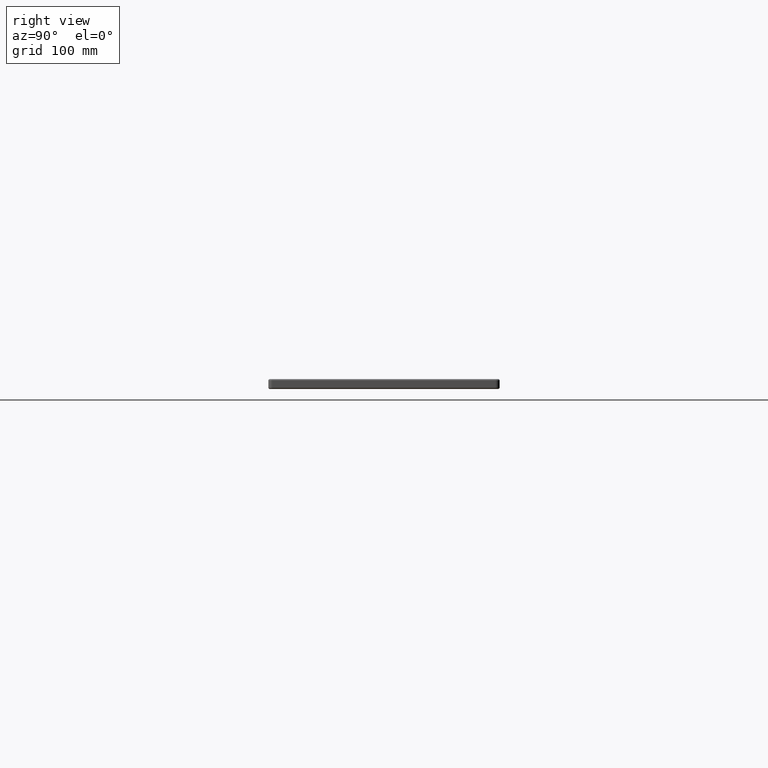
[diagram: clean part render]
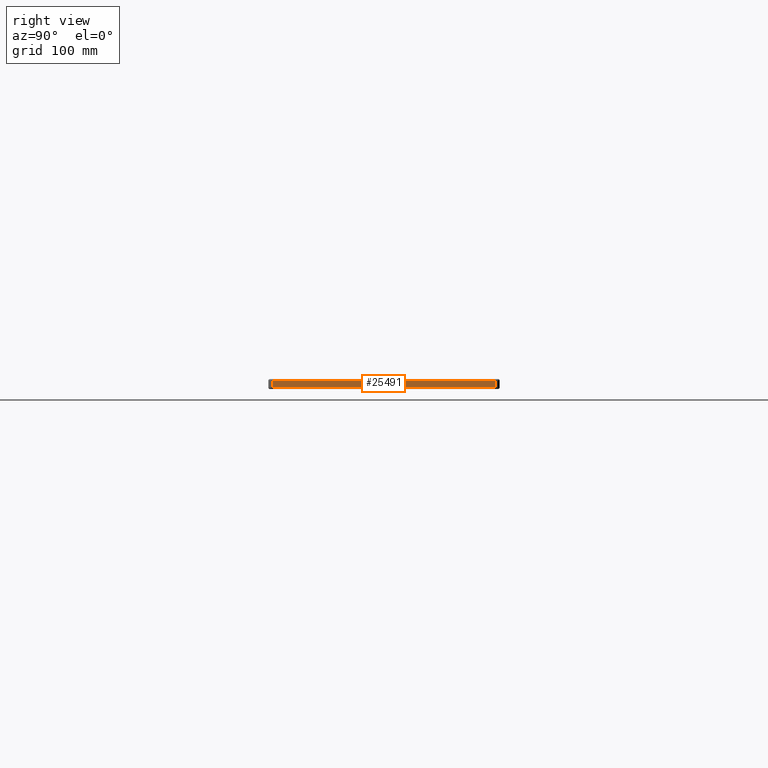
[diagram: same view with one face highlighted and labeled with its STEP entity id]
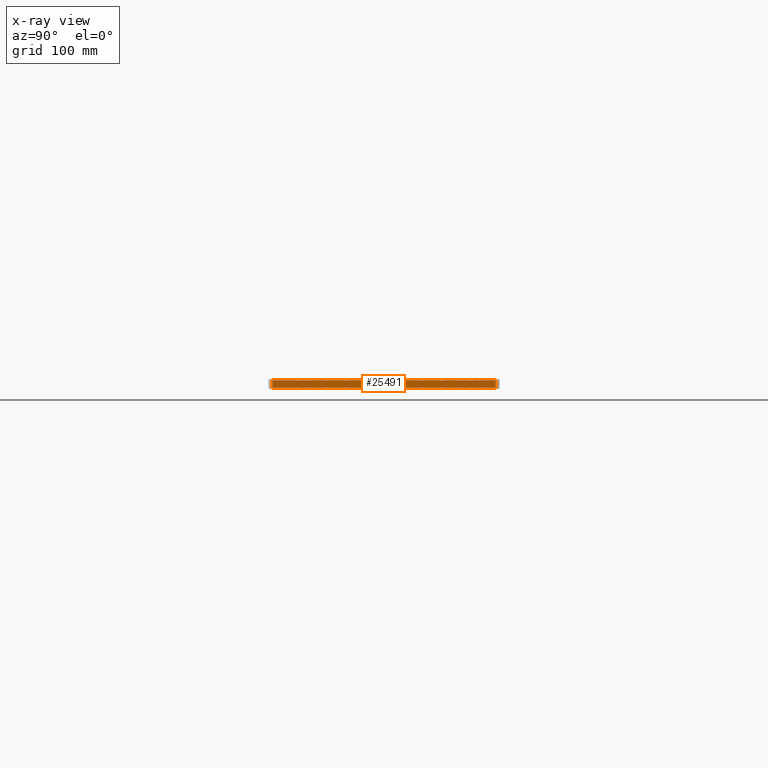
[diagram: x-ray of the same camera — body ghosted, the highlighted face saturated]
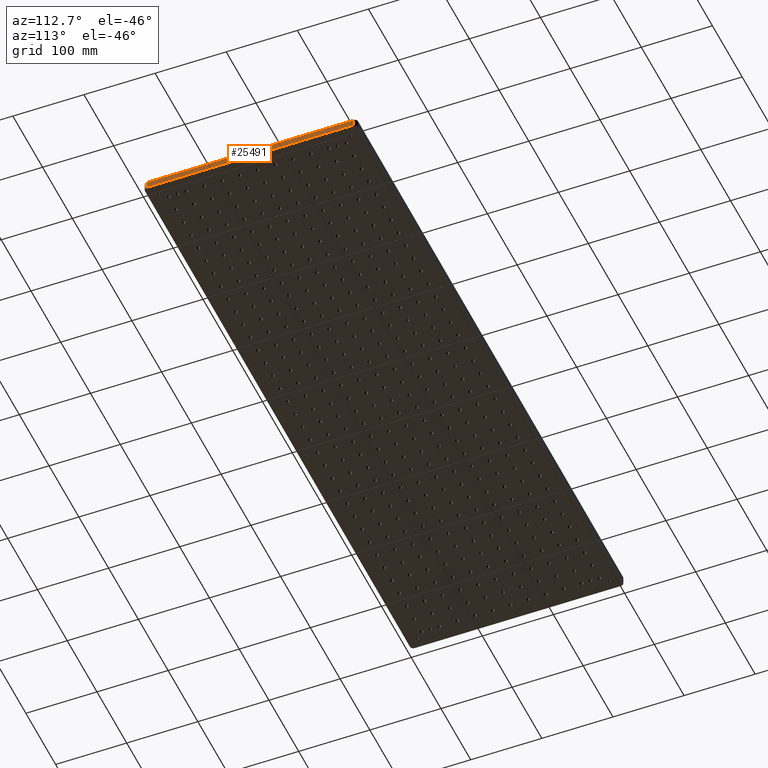
[diagram: same view with one face highlighted and labeled with its STEP entity id]
A machine part, right view. The second image highlights one B-rep face of the part: STEP entity #25491.
The next image is the same camera in x-ray: the body ghosted, the highlighted face saturated — about 0% of this face is hidden behind the body in this view.
A second angle (auxiliary view) of the same face is appended — the face is thin or edge-on in the first view.
In plain terms, the highlighted planar face has unit normal (1, 0, 0).
Its self-contained STEP definition (entity closure, byte-faithful):
#23 = CARTESIAN_POINT ( 'NONE',  ( 900.0000000000000000, 294.9999999999999400, -13.00000000000000000 ) ) ;
#414 = ORIENTED_EDGE ( 'NONE', *, *, #759, .T. ) ;
#759 = EDGE_CURVE ( 'NONE', #5732, #5030, #20124, .T. ) ;
#1292 = CARTESIAN_POINT ( 'NONE',  ( 900.0000000000000000, 4.999999999999999100, -11.00000000000000000 ) ) ;
#1508 = CARTESIAN_POINT ( 'NONE',  ( 900.0000000000000000, 5.000000000000004400, -2.000000000000000000 ) ) ;
#2276 = ORIENTED_EDGE ( 'NONE', *, *, #15576, .T. ) ;
#2966 = FACE_OUTER_BOUND ( 'NONE', #19678, .T. ) ;
#4014 = LINE ( 'NONE', #16732, #6563 ) ;
#4837 = EDGE_CURVE ( 'NONE', #8582, #5732, #25805, .T. ) ;
#5030 = VERTEX_POINT ( 'NONE', #10722 ) ;
#5732 = VERTEX_POINT ( 'NONE', #9843 ) ;
#6563 = VECTOR ( 'NONE', #23561, 1000.000000000000000 ) ;
#8582 = VERTEX_POINT ( 'NONE', #24538 ) ;
#8623 = VECTOR ( 'NONE', #23229, 1000.000000000000000 ) ;
#8973 = CARTESIAN_POINT ( 'NONE',  ( 900.0000000000000000, 0.0000000000000000000, -11.00000000000000000 ) ) ;
#9843 = CARTESIAN_POINT ( 'NONE',  ( 900.0000000000000000, 294.9999999999999400, -2.000000000000000000 ) ) ;
#9878 = DIRECTION ( 'NONE',  ( 0.0000000000000000000, 0.0000000000000000000, -1.000000000000000000 ) ) ;
#10722 = CARTESIAN_POINT ( 'NONE',  ( 900.0000000000000000, 4.999999999999999100, -2.000000000000000000 ) ) ;
#12893 = EDGE_CURVE ( 'NONE', #5030, #25169, #4014, .T. ) ;
#15576 = EDGE_CURVE ( 'NONE', #25169, #8582, #16284, .T. ) ;
#16138 = DIRECTION ( 'NONE',  ( 0.0000000000000000000, 0.0000000000000000000, 1.000000000000000000 ) ) ;
#16284 = LINE ( 'NONE', #8973, #8623 ) ;
#16732 = CARTESIAN_POINT ( 'NONE',  ( 900.0000000000000000, 4.999999999999999100, -13.00000000000000000 ) ) ;
#17620 = ORIENTED_EDGE ( 'NONE', *, *, #4837, .T. ) ;
#18481 = AXIS2_PLACEMENT_3D ( 'NONE', #19428, #23855, #9878 ) ;
#19428 = CARTESIAN_POINT ( 'NONE',  ( 900.0000000000000000, 0.0000000000000000000, -13.00000000000000000 ) ) ;
#19678 = EDGE_LOOP ( 'NONE', ( #22602, #2276, #17620, #414 ) ) ;
#20124 = LINE ( 'NONE', #1508, #24906 ) ;
#22602 = ORIENTED_EDGE ( 'NONE', *, *, #12893, .T. ) ;
#23229 = DIRECTION ( 'NONE',  ( -0.0000000000000000000, 1.000000000000000000, 0.0000000000000000000 ) ) ;
#23561 = DIRECTION ( 'NONE',  ( 0.0000000000000000000, -0.0000000000000000000, -1.000000000000000000 ) ) ;
#23855 = DIRECTION ( 'NONE',  ( 1.000000000000000000, 0.0000000000000000000, 0.0000000000000000000 ) ) ;
#24249 = PLANE ( 'NONE',  #18481 ) ;
#24538 = CARTESIAN_POINT ( 'NONE',  ( 900.0000000000000000, 294.9999999999999400, -11.00000000000000000 ) ) ;
#24906 = VECTOR ( 'NONE', #29195, 1000.000000000000000 ) ;
#25169 = VERTEX_POINT ( 'NONE', #1292 ) ;
#25491 = ADVANCED_FACE ( 'NONE', ( #2966 ), #24249, .T. ) ;
#25805 = LINE ( 'NONE', #23, #28725 ) ;
#28725 = VECTOR ( 'NONE', #16138, 1000.000000000000000 ) ;
#29195 = DIRECTION ( 'NONE',  ( -0.0000000000000000000, -1.000000000000000000, 0.0000000000000000000 ) ) ;